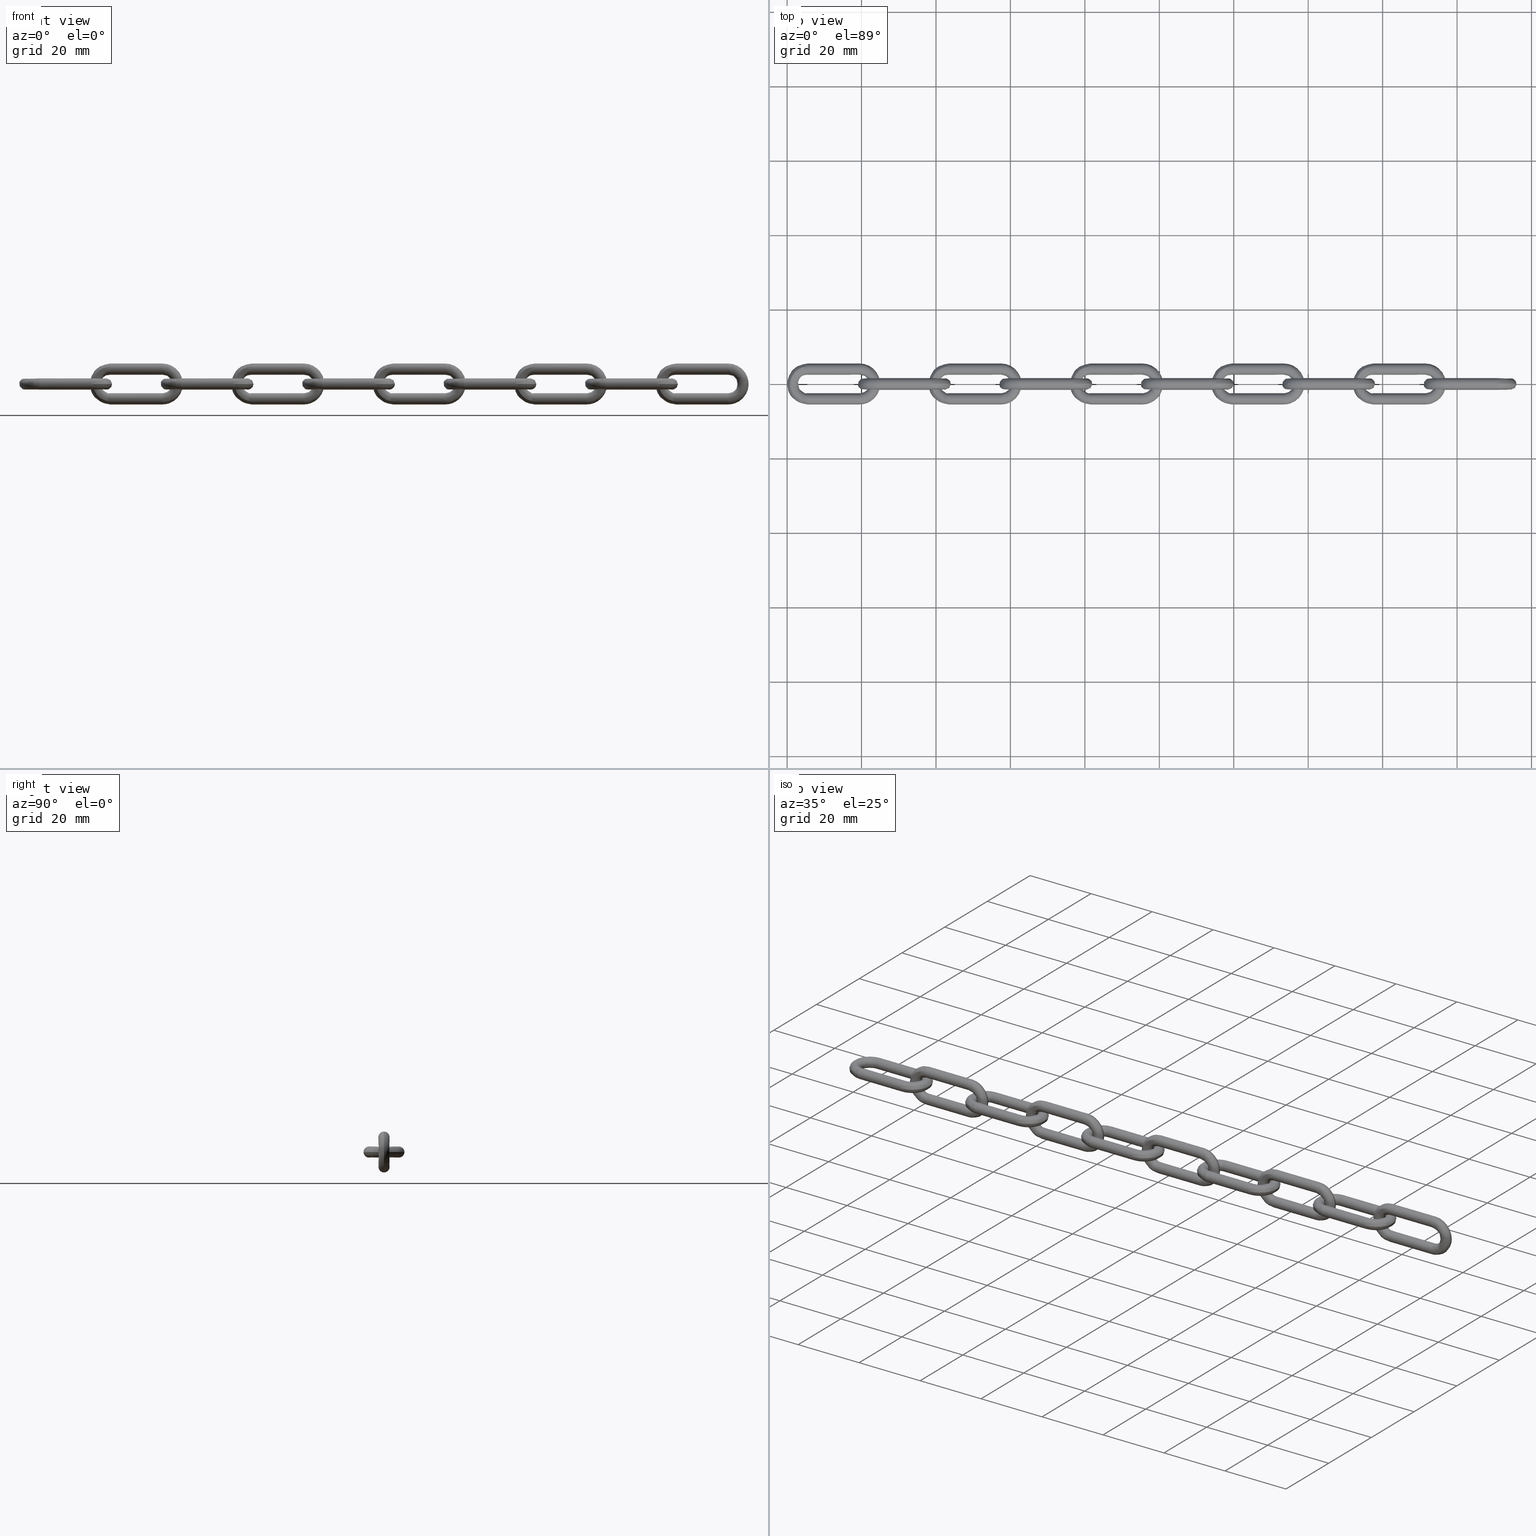
[diagram: canonical four-view strip — front | top / right | iso, engineering-drawing reading convention]
A machine part, canonical four-view strip (front | top / right | iso — engineering-drawing reading convention). The complete STEP part file that produces these views, byte-faithful:
ISO-10303-21;
HEADER;
/****************************************************************
 * Generated by software with PDE/Lib inside                    *
 * PDElib Version 4.4.1-0003, patched  Thursday August 19 11:58 *
 * International Technegroup Inc. (www.iti-oh.com)              *
 ****************************************************************/
FILE_DESCRIPTION((''),'2;1');
FILE_NAME('','2005-12-14T14:34:41',(''),(''),'','CADfix','');
FILE_SCHEMA(('AUTOMOTIVE_DESIGN'));
ENDSEC;
DATA;
#5=APPLICATION_CONTEXT('automotive design');
#6=APPLICATION_PROTOCOL_DEFINITION('Draft International Standard','automotive_design',1998,#5);
#7=PRODUCT_CONTEXT('None',#5,'mechanical');
#8=PRODUCT('chain','','None',(#7));
#9=PRODUCT_RELATED_PRODUCT_CATEGORY('part','description',(#8));
#10=PRODUCT_DEFINITION_FORMATION('None','None',#8);
#11=PRODUCT_DEFINITION_CONTEXT('part definition',#5,'design');
#12=PRODUCT_DEFINITION('None','None',#10,#11);
#18=(NAMED_UNIT(*)PLANE_ANGLE_UNIT()SI_UNIT($,.RADIAN.));
#19=DIMENSIONAL_EXPONENTS(0.0,0.0,0.0,0.0,0.0,0.0,0.0);
#20=PLANE_ANGLE_MEASURE_WITH_UNIT(PLANE_ANGLE_MEASURE(0.017453292500000),#18);
#24=(CONVERSION_BASED_UNIT('DEGREE',#20)NAMED_UNIT(#19)PLANE_ANGLE_UNIT());
#28=(NAMED_UNIT(*)SI_UNIT($,.STERADIAN.)SOLID_ANGLE_UNIT());
#32=(LENGTH_UNIT()NAMED_UNIT(*)SI_UNIT(.MILLI.,.METRE.));
#34=UNCERTAINTY_MEASURE_WITH_UNIT(LENGTH_MEASURE(0.001000000000000),#32,'DISTANCE_ACCURACY_VALUE','');
#36=(GEOMETRIC_REPRESENTATION_CONTEXT(3)GLOBAL_UNCERTAINTY_ASSIGNED_CONTEXT((#34))GLOBAL_UNIT_ASSIGNED_CONTEXT((#24,#28,#32))REPRESENTATION_CONTEXT('None','None'));
#37=AXIS2_PLACEMENT_3D('',#38,#39,#40);
#38=CARTESIAN_POINT('',(0.0,0.0,0.0));
#39=DIRECTION('',(0.0,0.0,1.0));
#40=DIRECTION('',(1.0,0.0,0.0));
#41=ADVANCED_BREP_SHAPE_REPRESENTATION('',(#37,#837,#877,#893,#909,#925,#941,#957,#973,#989,#1005,#1021),#36);
#42=PRODUCT_DEFINITION_SHAPE('','',#12);
#43=SHAPE_DEFINITION_REPRESENTATION(#42,#41);
#44=CARTESIAN_POINT('',(19.850000000045117,-2.532623368388962,0.311136338285710));
#45=CARTESIAN_POINT('',(19.850000000045117,-2.372475699922098,-0.444149745011559));
#46=CARTESIAN_POINT('',(19.850000000045121,-2.894083994784815,-1.013385311423490));
#47=CARTESIAN_POINT('',(19.850000000045114,-3.907469306208305,-2.119301316638675));
#48=CARTESIAN_POINT('',(19.850000000045121,-5.013385311423490,-1.105916005215185));
#49=CARTESIAN_POINT('',(19.850000000045114,-6.119301316638675,-0.092530693791695));
#50=CARTESIAN_POINT('',(19.850000000045121,-5.105916005215185,1.013385311423491));
#51=CARTESIAN_POINT('',(19.850000000045114,-4.092530693791695,2.119301316638677));
#52=CARTESIAN_POINT('',(19.850000000045121,-2.986614688576510,1.105916005215186));
#53=CARTESIAN_POINT('',(5.141249999998872,-2.532623368388962,0.311136338285710));
#54=CARTESIAN_POINT('',(5.141249999998872,-2.372475699922098,-0.444149745011559));
#55=CARTESIAN_POINT('',(5.141249999998871,-2.894083994784815,-1.013385311423490));
#56=CARTESIAN_POINT('',(5.141249999998871,-3.907469306208305,-2.119301316638675));
#57=CARTESIAN_POINT('',(5.141249999998871,-5.013385311423490,-1.105916005215185));
#58=CARTESIAN_POINT('',(5.141249999998871,-6.119301316638675,-0.092530693791695));
#59=CARTESIAN_POINT('',(5.141249999998871,-5.105916005215185,1.013385311423491));
#60=CARTESIAN_POINT('',(5.141249999998871,-4.092530693791695,2.119301316638677));
#61=CARTESIAN_POINT('',(5.141249999998871,-2.986614688576510,1.105916005215186));
#69=(BOUNDED_SURFACE()B_SPLINE_SURFACE(2,1,((#44,#53),(#45,#54),(#46,#55),(#47,#56),(#48,#57),(#49,#58),(#50,#59),(#51,#60),(#52,#61)),.UNSPECIFIED.,.F.,.F.,.U.)B_SPLINE_SURFACE_WITH_KNOTS((3,2,2,2,3),(2,2),(0.628318530717959,1.570796326794897,3.141592653589793,4.712388980384690,6.283185307179586),(0.0,14.708750000046249),.UNSPECIFIED.)GEOMETRIC_REPRESENTATION_ITEM()RATIONAL_B_SPLINE_SURFACE(((0.859411254969543,0.859411254969543),(0.824264068711928,0.824264068711928),(1.0,1.0),(0.707106781186548,0.707106781186548),(1.0,1.0),(0.707106781186548,0.707106781186548),(1.0,1.0),(0.707106781186548,0.707106781186548),(1.0,1.0)))REPRESENTATION_ITEM('')SURFACE());
#70=CARTESIAN_POINT('',(5.500000000000001,-2.532623368391872,0.311136338299437));
#71=VERTEX_POINT('',#70);
#72=CARTESIAN_POINT('',(5.500000000000000,-2.500000000000000,7.347638E-016));
#73=VERTEX_POINT('',#72);
#74=CARTESIAN_POINT('',(5.500000000000000,-2.532623368391871,0.311136338299437));
#75=CARTESIAN_POINT('',(5.500000000000000,-2.500000000000000,0.157278487165710));
#76=CARTESIAN_POINT('',(5.500000000000000,-2.500000000000000,7.347638E-016));
#84=(BOUNDED_CURVE()B_SPLINE_CURVE(2,(#74,#75,#76),.UNSPECIFIED.,.F.,.U.)B_SPLINE_CURVE_WITH_KNOTS((3,3),(0.464472125250221,0.500000000000000),.UNSPECIFIED.)CURVE()GEOMETRIC_REPRESENTATION_ITEM()RATIONAL_B_SPLINE_CURVE((0.928583365613134,0.958376505627744,1.0))REPRESENTATION_ITEM(''));
#85=EDGE_CURVE('',#71,#73,#84,.T.);
#86=ORIENTED_EDGE('',*,*,#85,.F.);
#87=CARTESIAN_POINT('',(19.500000000000000,-2.532623368391872,0.311136338299438));
#88=VERTEX_POINT('',#87);
#89=CARTESIAN_POINT('',(19.500000000000000,-2.532623368391872,0.311136338299438));
#90=CARTESIAN_POINT('',(5.500000000000001,-2.532623368391872,0.311136338299437));
#91=QUASI_UNIFORM_CURVE('',1,(#89,#90),.UNSPECIFIED.,.F.,.U.);
#92=EDGE_CURVE('',#88,#71,#91,.T.);
#93=ORIENTED_EDGE('',*,*,#92,.F.);
#94=CARTESIAN_POINT('',(19.500000000000000,-4.0,-1.499999999999999));
#95=VERTEX_POINT('',#94);
#96=CARTESIAN_POINT('',(19.499999999999996,-2.532623368391872,0.311136338299438));
#97=CARTESIAN_POINT('',(19.499999999999996,-2.500000000000000,0.157278487165710));
#98=CARTESIAN_POINT('',(19.500000000000000,-2.500000000000000,7.347638E-016));
#99=CARTESIAN_POINT('',(19.500000000000004,-2.500000000000000,-1.500000000000000));
#100=CARTESIAN_POINT('',(19.500000000000000,-4.0,-1.499999999999999));
#108=(BOUNDED_CURVE()B_SPLINE_CURVE(2,(#96,#97,#98,#99,#100),.UNSPECIFIED.,.F.,.U.)B_SPLINE_CURVE_WITH_KNOTS((3,2,3),(0.214472125250221,0.250000000000000,0.500000000000000),.UNSPECIFIED.)CURVE()GEOMETRIC_REPRESENTATION_ITEM()RATIONAL_B_SPLINE_CURVE((0.928583365613133,0.958376505627744,1.0,0.707106781186548,1.0))REPRESENTATION_ITEM(''));
#109=EDGE_CURVE('',#88,#95,#108,.T.);
#110=ORIENTED_EDGE('',*,*,#109,.T.);
#111=CARTESIAN_POINT('',(19.500000000044022,-4.529952950130690,-1.403264006040124));
#112=VERTEX_POINT('',#111);
#113=CARTESIAN_POINT('',(19.500000000000000,-4.0,-1.499999999999999));
#114=CARTESIAN_POINT('',(19.500000000000000,-4.273805421679723,-1.500000000000000));
#115=CARTESIAN_POINT('',(19.500000000044025,-4.529952950130690,-1.403264006040124));
#123=(BOUNDED_CURVE()B_SPLINE_CURVE(2,(#113,#114,#115),.UNSPECIFIED.,.F.,.U.)B_SPLINE_CURVE_WITH_KNOTS((3,3),(0.500000000000000,0.560000000031626),.UNSPECIFIED.)CURVE()GEOMETRIC_REPRESENTATION_ITEM()RATIONAL_B_SPLINE_CURVE((1.0,0.929705627447719,0.893152553738318))REPRESENTATION_ITEM(''));
#124=EDGE_CURVE('',#95,#112,#123,.T.);
#125=ORIENTED_EDGE('',*,*,#124,.T.);
#126=CARTESIAN_POINT('',(19.499994373816659,-5.499999999994236,-0.000000113220544));
#127=VERTEX_POINT('',#126);
#128=CARTESIAN_POINT('',(19.500000000044022,-4.529952950130690,-1.403264006040124));
#129=CARTESIAN_POINT('',(19.499997186930333,-5.499999921659858,-1.036918648166086));
#130=CARTESIAN_POINT('',(19.499994373816662,-5.499999999994236,-0.000000113220544));
#138=(BOUNDED_CURVE()B_SPLINE_CURVE(2,(#128,#129,#130),.UNSPECIFIED.,.F.,.U.)B_SPLINE_CURVE_WITH_KNOTS((3,3),(0.560000000031626,0.749999986656831),.UNSPECIFIED.)CURVE()GEOMETRIC_REPRESENTATION_ITEM()RATIONAL_B_SPLINE_CURVE((0.893152553738319,0.777401161867725,0.999999968735012))REPRESENTATION_ITEM(''));
#139=EDGE_CURVE('',#112,#127,#138,.T.);
#140=ORIENTED_EDGE('',*,*,#139,.T.);
#141=CARTESIAN_POINT('',(19.500000000000000,-4.0,1.500000000000001));
#142=VERTEX_POINT('',#141);
#143=CARTESIAN_POINT('',(19.499994373816651,-5.499999999994235,-0.000000113220544));
#144=CARTESIAN_POINT('',(19.499997186908324,-5.500000113217666,1.500000000000000));
#145=CARTESIAN_POINT('',(19.500000000000000,-4.0,1.500000000000001));
#153=(BOUNDED_CURVE()B_SPLINE_CURVE(2,(#143,#144,#145),.UNSPECIFIED.,.F.,.U.)B_SPLINE_CURVE_WITH_KNOTS((3,3),(0.749999986656831,1.0),.UNSPECIFIED.)CURVE()GEOMETRIC_REPRESENTATION_ITEM()RATIONAL_B_SPLINE_CURVE((1.000000031264992,0.707106765554053,1.0))REPRESENTATION_ITEM(''));
#154=EDGE_CURVE('',#127,#142,#153,.T.);
#155=ORIENTED_EDGE('',*,*,#154,.T.);
#156=CARTESIAN_POINT('',(19.500000000000000,-2.986614737113435,1.105916049691080));
#157=VERTEX_POINT('',#156);
#158=CARTESIAN_POINT('',(19.500000000000000,-4.0,1.500000000000001));
#159=CARTESIAN_POINT('',(19.500000000000004,-3.416681978008819,1.500000000000001));
#160=CARTESIAN_POINT('',(19.500000000000004,-2.986614737113435,1.105916049691080));
#168=(BOUNDED_CURVE()B_SPLINE_CURVE(2,(#158,#159,#160),.UNSPECIFIED.,.F.,.U.)B_SPLINE_CURVE_WITH_KNOTS((3,3),(0.0,0.118415195833259),.UNSPECIFIED.)CURVE()GEOMETRIC_REPRESENTATION_ITEM()RATIONAL_B_SPLINE_CURVE((1.0,0.861267968543886,0.853959782473544))REPRESENTATION_ITEM(''));
#169=EDGE_CURVE('',#142,#157,#168,.T.);
#170=ORIENTED_EDGE('',*,*,#169,.T.);
#171=CARTESIAN_POINT('',(5.500000000000001,-2.986614737719884,1.105916050246788));
#172=VERTEX_POINT('',#171);
#173=CARTESIAN_POINT('',(19.500000000000000,-2.986614737113435,1.105916049691080));
#174=CARTESIAN_POINT('',(5.500000000000001,-2.986614737719884,1.105916050246788));
#175=QUASI_UNIFORM_CURVE('',1,(#173,#174),.UNSPECIFIED.,.F.,.U.);
#176=EDGE_CURVE('',#157,#172,#175,.T.);
#177=ORIENTED_EDGE('',*,*,#176,.T.);
#178=CARTESIAN_POINT('',(5.500000000040920,-4.638668937461087,1.357240578645631));
#179=VERTEX_POINT('',#178);
#180=CARTESIAN_POINT('',(5.500000000040921,-4.638668937461086,1.357240578645631));
#181=CARTESIAN_POINT('',(5.500000000000001,-4.335289724477404,1.500000000000001));
#182=CARTESIAN_POINT('',(5.500000000000000,-4.0,1.500000000000001));
#183=CARTESIAN_POINT('',(5.500000000000002,-3.416681978955765,1.500000000000001));
#184=CARTESIAN_POINT('',(5.500000000000001,-2.986614737719884,1.105916050246788));
#192=(BOUNDED_CURVE()B_SPLINE_CURVE(2,(#180,#181,#182,#183,#184),.UNSPECIFIED.,.F.,.U.)B_SPLINE_CURVE_WITH_KNOTS((3,2,3),(0.177668464610475,0.250000000000000,0.368415195667695),.UNSPECIFIED.)CURVE()GEOMETRIC_REPRESENTATION_ITEM()RATIONAL_B_SPLINE_CURVE((0.879552628086753,0.915258335112172,1.0,0.861267968737856,0.853959782493981))REPRESENTATION_ITEM(''));
#193=EDGE_CURVE('',#179,#172,#192,.T.);
#194=ORIENTED_EDGE('',*,*,#193,.F.);
#195=CARTESIAN_POINT('',(5.500000000000000,-5.500000000000000,7.347638E-016));
#196=VERTEX_POINT('',#195);
#197=CARTESIAN_POINT('',(5.500000000000000,-5.500000000000000,7.347638E-016));
#198=CARTESIAN_POINT('',(5.500000000000000,-5.500000000000000,0.951928946140301));
#199=CARTESIAN_POINT('',(5.500000000040920,-4.638668937461087,1.357240578645631));
#207=(BOUNDED_CURVE()B_SPLINE_CURVE(2,(#197,#198,#199),.UNSPECIFIED.,.F.,.U.)B_SPLINE_CURVE_WITH_KNOTS((3,3),(0.0,0.177668464610475),.UNSPECIFIED.)CURVE()GEOMETRIC_REPRESENTATION_ITEM()RATIONAL_B_SPLINE_CURVE((1.0,0.791848446074376,0.879552628086753))REPRESENTATION_ITEM(''));
#208=EDGE_CURVE('',#196,#179,#207,.T.);
#209=ORIENTED_EDGE('',*,*,#208,.F.);
#210=CARTESIAN_POINT('',(5.500000000191934,-3.522315445648221,-1.421906279096389));
#211=VERTEX_POINT('',#210);
#212=CARTESIAN_POINT('',(5.500000000191934,-3.522315445648221,-1.421906279096389));
#213=CARTESIAN_POINT('',(5.500000000000000,-3.754774189241835,-1.499999999999999));
#214=CARTESIAN_POINT('',(5.500000000000000,-4.0,-1.499999999999999));
#215=CARTESIAN_POINT('',(5.500000000000001,-5.500000000000001,-1.500000000000000));
#216=CARTESIAN_POINT('',(5.500000000000000,-5.500000000000000,7.347638E-016));
#224=(BOUNDED_CURVE()B_SPLINE_CURVE(2,(#212,#213,#214,#215,#216),.UNSPECIFIED.,.F.,.U.)B_SPLINE_CURVE_WITH_KNOTS((3,2,3),(0.695865557042459,0.750000000000000,1.0),.UNSPECIFIED.)CURVE()GEOMETRIC_REPRESENTATION_ITEM()RATIONAL_B_SPLINE_CURVE((0.900621819870533,0.936577555013970,1.0,0.707106781186548,1.0))REPRESENTATION_ITEM(''));
#225=EDGE_CURVE('',#211,#196,#224,.T.);
#226=ORIENTED_EDGE('',*,*,#225,.F.);
#227=CARTESIAN_POINT('',(5.500000000000000,-2.500000000000000,7.347638E-016));
#228=CARTESIAN_POINT('',(5.500000000000000,-2.500000000000000,-1.078462897042010));
#229=CARTESIAN_POINT('',(5.500000000191935,-3.522315445648221,-1.421906279096390));
#237=(BOUNDED_CURVE()B_SPLINE_CURVE(2,(#227,#228,#229),.UNSPECIFIED.,.F.,.U.)B_SPLINE_CURVE_WITH_KNOTS((3,3),(0.500000000000000,0.695865557042458),.UNSPECIFIED.)CURVE()GEOMETRIC_REPRESENTATION_ITEM()RATIONAL_B_SPLINE_CURVE((1.0,0.770529226172578,0.900621819870532))REPRESENTATION_ITEM(''));
#238=EDGE_CURVE('',#73,#211,#237,.T.);
#239=ORIENTED_EDGE('',*,*,#238,.F.);
#240=EDGE_LOOP('',(#86,#93,#110,#125,#140,#155,#170,#177,#194,#209,#226,#239));
#241=FACE_OUTER_BOUND('',#240,.T.);
#242=ADVANCED_FACE('',(#241),#69,.T.);
#243=CARTESIAN_POINT('',(19.850000000045121,-2.986614688576510,1.105916005215186));
#244=CARTESIAN_POINT('',(19.850000000045117,-2.632304370029082,0.781250415054134));
#245=CARTESIAN_POINT('',(19.850000000045117,-2.532623368388962,0.311136338285710));
#246=CARTESIAN_POINT('',(5.141249999998871,-2.986614688576510,1.105916005215186));
#247=CARTESIAN_POINT('',(5.141249999998871,-2.632304370029082,0.781250415054134));
#248=CARTESIAN_POINT('',(5.141249999998872,-2.532623368388962,0.311136338285710));
#256=(BOUNDED_SURFACE()B_SPLINE_SURFACE(2,1,((#243,#246),(#244,#247),(#245,#248)),.UNSPECIFIED.,.F.,.F.,.U.)B_SPLINE_SURFACE_WITH_KNOTS((3,3),(2,2),(0.0,0.628318530717959),(0.0,14.708750000046249),.UNSPECIFIED.)GEOMETRIC_REPRESENTATION_ITEM()RATIONAL_B_SPLINE_SURFACE(((1.0,1.0),(0.882842712474619,0.882842712474619),(0.859411254969543,0.859411254969543)))REPRESENTATION_ITEM('')SURFACE());
#257=CARTESIAN_POINT('',(5.500000000000001,-2.986614737719884,1.105916050246788));
#258=CARTESIAN_POINT('',(5.500000000000000,-2.632304385285503,0.781250486962912));
#259=CARTESIAN_POINT('',(5.500000000000002,-2.532623368391872,0.311136338299437));
#267=(BOUNDED_CURVE()B_SPLINE_CURVE(2,(#257,#258,#259),.UNSPECIFIED.,.F.,.U.)B_SPLINE_CURVE_WITH_KNOTS((3,3),(0.368415195667695,0.464472125250222),.UNSPECIFIED.)CURVE()GEOMETRIC_REPRESENTATION_ITEM()RATIONAL_B_SPLINE_CURVE((0.853959782493981,0.848031472977236,0.928583365613134))REPRESENTATION_ITEM(''));
#268=EDGE_CURVE('',#172,#71,#267,.T.);
#269=ORIENTED_EDGE('',*,*,#268,.F.);
#270=ORIENTED_EDGE('',*,*,#176,.F.);
#271=CARTESIAN_POINT('',(19.500000000000004,-2.986614737113435,1.105916049691080));
#272=CARTESIAN_POINT('',(19.499999999999993,-2.632304385097375,0.781250486075659));
#273=CARTESIAN_POINT('',(19.499999999999996,-2.532623368391872,0.311136338299438));
#281=(BOUNDED_CURVE()B_SPLINE_CURVE(2,(#271,#272,#273),.UNSPECIFIED.,.F.,.U.)B_SPLINE_CURVE_WITH_KNOTS((3,3),(0.118415195833259,0.214472125250221),.UNSPECIFIED.)CURVE()GEOMETRIC_REPRESENTATION_ITEM()RATIONAL_B_SPLINE_CURVE((0.853959782473545,0.848031473116076,0.928583365613133))REPRESENTATION_ITEM(''));
#282=EDGE_CURVE('',#157,#88,#281,.T.);
#283=ORIENTED_EDGE('',*,*,#282,.T.);
#284=ORIENTED_EDGE('',*,*,#92,.T.);
#285=EDGE_LOOP('',(#269,#270,#283,#284));
#286=FACE_OUTER_BOUND('',#285,.T.);
#287=ADVANCED_FACE('',(#286),#256,.T.);
#288=CARTESIAN_POINT('',(19.850000000021467,3.669434129405280,-1.463122074605519));
#289=CARTESIAN_POINT('',(19.850000000021463,3.253083383079867,-1.369055182088071));
#290=CARTESIAN_POINT('',(19.850000000021460,2.948636103550223,-1.069875673731272));
#291=CARTESIAN_POINT('',(19.850000000021467,1.878760429818952,-0.018511777281495));
#292=CARTESIAN_POINT('',(19.850000000021460,2.930124326268729,1.051363896449776));
#293=CARTESIAN_POINT('',(5.141249999661905,3.669434129405280,-1.463122074605519));
#294=CARTESIAN_POINT('',(5.141249999661906,3.253083383079867,-1.369055182088071));
#295=CARTESIAN_POINT('',(5.141249999661905,2.948636103550223,-1.069875673731272));
#296=CARTESIAN_POINT('',(5.141249999661906,1.878760429818952,-0.018511777281495));
#297=CARTESIAN_POINT('',(5.141249999661905,2.930124326268729,1.051363896449776));
#305=(BOUNDED_SURFACE()B_SPLINE_SURFACE(2,1,((#288,#293),(#289,#294),(#290,#295),(#291,#296),(#292,#297)),.UNSPECIFIED.,.F.,.F.,.U.)B_SPLINE_SURFACE_WITH_KNOTS((3,2,3),(2,2),(4.146902302738527,4.712388980384690,6.283185307179586),(0.0,14.708750000359560),.UNSPECIFIED.)GEOMETRIC_REPRESENTATION_ITEM()RATIONAL_B_SPLINE_SURFACE(((0.865034804770761,0.865034804770761),(0.894558441227157,0.894558441227157),(1.0,1.0),(0.707106781186548,0.707106781186548),(1.0,1.0)))REPRESENTATION_ITEM('')SURFACE());
#306=CARTESIAN_POINT('',(19.500000000000000,3.669434129378090,-1.463122074599375));
#307=VERTEX_POINT('',#306);
#308=CARTESIAN_POINT('',(19.500000000000000,2.930124267276296,1.051363836418634));
#309=VERTEX_POINT('',#308);
#310=CARTESIAN_POINT('',(19.500000000000004,3.669434129378090,-1.463122074599375));
#311=CARTESIAN_POINT('',(19.499999999999996,2.500000000000000,-1.198909663442834));
#312=CARTESIAN_POINT('',(19.500000000000000,2.500000000000000,-7.347638E-016));
#313=CARTESIAN_POINT('',(19.499999999999996,2.500000000000000,0.613666103889056));
#314=CARTESIAN_POINT('',(19.500000000000007,2.930124267276297,1.051363836418634));
#322=(BOUNDED_CURVE()B_SPLINE_CURVE(2,(#310,#311,#312,#313,#314),.UNSPECIFIED.,.F.,.U.)B_SPLINE_CURVE_WITH_KNOTS((3,2,3),(0.537700295056450,0.750000000000000,0.873683225475780),.UNSPECIFIED.)CURVE()GEOMETRIC_REPRESENTATION_ITEM()RATIONAL_B_SPLINE_CURVE((0.924984080855624,0.751275424263750,1.0,0.855096087908676,0.853569641669462))REPRESENTATION_ITEM(''));
#323=EDGE_CURVE('',#307,#309,#322,.T.);
#324=ORIENTED_EDGE('',*,*,#323,.T.);
#325=CARTESIAN_POINT('',(5.500000000000001,2.930124313960822,1.051363883925160));
#326=VERTEX_POINT('',#325);
#327=CARTESIAN_POINT('',(19.500000000000000,2.930124267276296,1.051363836418634));
#328=CARTESIAN_POINT('',(5.500000000000001,2.930124313960822,1.051363883925160));
#329=QUASI_UNIFORM_CURVE('',1,(#327,#328),.UNSPECIFIED.,.F.,.U.);
#330=EDGE_CURVE('',#309,#326,#329,.T.);
#331=ORIENTED_EDGE('',*,*,#330,.T.);
#332=CARTESIAN_POINT('',(5.500000000000000,2.500000000000000,7.347638E-016));
#333=VERTEX_POINT('',#332);
#334=CARTESIAN_POINT('',(5.500000000000001,2.930124313960822,1.051363883925160));
#335=CARTESIAN_POINT('',(5.500000000000000,2.500000000000000,0.613666181642619));
#336=CARTESIAN_POINT('',(5.500000000000000,2.500000000000000,7.347638E-016));
#344=(BOUNDED_CURVE()B_SPLINE_CURVE(2,(#334,#335,#336),.UNSPECIFIED.,.F.,.U.)B_SPLINE_CURVE_WITH_KNOTS((3,3),(0.376316761123940,0.500000000000000),.UNSPECIFIED.)CURVE()GEOMETRIC_REPRESENTATION_ITEM()RATIONAL_B_SPLINE_CURVE((0.853569641338702,0.855096072209271,1.0))REPRESENTATION_ITEM(''));
#345=EDGE_CURVE('',#326,#333,#344,.T.);
#346=ORIENTED_EDGE('',*,*,#345,.T.);
#347=CARTESIAN_POINT('',(5.499999999670675,3.522315445656581,-1.421906279099199));
#348=VERTEX_POINT('',#347);
#349=CARTESIAN_POINT('',(5.500000000000000,2.500000000000000,7.347638E-016));
#350=CARTESIAN_POINT('',(5.500000000000000,2.500000000000000,-1.078462897055402));
#351=CARTESIAN_POINT('',(5.499999999670675,3.522315445656581,-1.421906279099198));
#359=(BOUNDED_CURVE()B_SPLINE_CURVE(2,(#349,#350,#351),.UNSPECIFIED.,.F.,.U.)B_SPLINE_CURVE_WITH_KNOTS((3,3),(0.500000000000000,0.695865557044332),.UNSPECIFIED.)CURVE()GEOMETRIC_REPRESENTATION_ITEM()RATIONAL_B_SPLINE_CURVE((1.0,0.770529226170382,0.900621819873021))REPRESENTATION_ITEM(''));
#360=EDGE_CURVE('',#333,#348,#359,.T.);
#361=ORIENTED_EDGE('',*,*,#360,.T.);
#362=CARTESIAN_POINT('',(5.499999999844485,3.669434129386455,-1.463122074678581));
#363=VERTEX_POINT('',#362);
#364=CARTESIAN_POINT('',(5.499999999670675,3.522315445656581,-1.421906279099199));
#365=CARTESIAN_POINT('',(5.499999999773398,3.594823911432018,-1.446265250509173));
#366=CARTESIAN_POINT('',(5.499999999844485,3.669434129386454,-1.463122074678580));
#374=(BOUNDED_CURVE()B_SPLINE_CURVE(2,(#364,#365,#366),.UNSPECIFIED.,.F.,.U.)B_SPLINE_CURVE_WITH_KNOTS((3,3),(0.695865557044332,0.712299704788338),.UNSPECIFIED.)CURVE()GEOMETRIC_REPRESENTATION_ITEM()RATIONAL_B_SPLINE_CURVE((0.900621819873020,0.911537270948608,0.924984080601628))REPRESENTATION_ITEM(''));
#375=EDGE_CURVE('',#348,#363,#374,.T.);
#376=ORIENTED_EDGE('',*,*,#375,.T.);
#377=CARTESIAN_POINT('',(19.500000000000000,3.669434129378090,-1.463122074599375));
#378=CARTESIAN_POINT('',(5.499999999844485,3.669434129386455,-1.463122074678581));
#379=QUASI_UNIFORM_CURVE('',1,(#377,#378),.UNSPECIFIED.,.F.,.U.);
#380=EDGE_CURVE('',#307,#363,#379,.T.);
#381=ORIENTED_EDGE('',*,*,#380,.F.);
#382=EDGE_LOOP('',(#324,#331,#346,#361,#376,#381));
#383=FACE_OUTER_BOUND('',#382,.T.);
#384=ADVANCED_FACE('',(#383),#305,.T.);
#385=CARTESIAN_POINT('',(19.850000000021460,2.930124326268729,1.051363896449776));
#386=CARTESIAN_POINT('',(19.850000000021467,3.981488222718505,2.121239570181047));
#387=CARTESIAN_POINT('',(19.850000000021460,5.051363896449777,1.069875673731271));
#388=CARTESIAN_POINT('',(19.850000000021467,6.121239570181048,0.018511777281494));
#389=CARTESIAN_POINT('',(19.850000000021460,5.069875673731271,-1.051363896449777));
#390=CARTESIAN_POINT('',(19.850000000021463,4.484319144189457,-1.647230549914629));
#391=CARTESIAN_POINT('',(19.850000000021467,3.669434129405280,-1.463122074605519));
#392=CARTESIAN_POINT('',(5.141249999661905,2.930124326268729,1.051363896449776));
#393=CARTESIAN_POINT('',(5.141249999661906,3.981488222718505,2.121239570181047));
#394=CARTESIAN_POINT('',(5.141249999661905,5.051363896449777,1.069875673731271));
#395=CARTESIAN_POINT('',(5.141249999661906,6.121239570181048,0.018511777281494));
#396=CARTESIAN_POINT('',(5.141249999661905,5.069875673731271,-1.051363896449777));
#397=CARTESIAN_POINT('',(5.141249999661905,4.484319144189457,-1.647230549914629));
#398=CARTESIAN_POINT('',(5.141249999661905,3.669434129405280,-1.463122074605519));
#406=(BOUNDED_SURFACE()B_SPLINE_SURFACE(2,1,((#385,#392),(#386,#393),(#387,#394),(#388,#395),(#389,#396),(#390,#397),(#391,#398)),.UNSPECIFIED.,.F.,.F.,.U.)B_SPLINE_SURFACE_WITH_KNOTS((3,2,2,3),(2,2),(0.0,1.570796326794897,3.141592653589793,4.146902302738527),(0.0,14.708750000359560),.UNSPECIFIED.)GEOMETRIC_REPRESENTATION_ITEM()RATIONAL_B_SPLINE_SURFACE(((1.0,1.0),(0.707106781186548,0.707106781186548),(1.0,1.0),(0.707106781186548,0.707106781186548),(1.0,1.0),(0.812548339959390,0.812548339959390),(0.865034804770761,0.865034804770761)))REPRESENTATION_ITEM('')SURFACE());
#407=CARTESIAN_POINT('',(19.500000000000000,4.0,-1.500000000000001));
#408=VERTEX_POINT('',#407);
#409=CARTESIAN_POINT('',(19.500000000000000,4.0,-1.500000000000001));
#410=CARTESIAN_POINT('',(19.500000000000000,3.832660014170450,-1.500000000000001));
#411=CARTESIAN_POINT('',(19.499999999999996,3.669434129378089,-1.463122074599375));
#419=(BOUNDED_CURVE()B_SPLINE_CURVE(2,(#409,#410,#411),.UNSPECIFIED.,.F.,.U.)B_SPLINE_CURVE_WITH_KNOTS((3,3),(0.500000000000000,0.537700295056451),.UNSPECIFIED.)CURVE()GEOMETRIC_REPRESENTATION_ITEM()RATIONAL_B_SPLINE_CURVE((1.0,0.955831356922797,0.924984080855623))REPRESENTATION_ITEM(''));
#420=EDGE_CURVE('',#408,#307,#419,.T.);
#421=ORIENTED_EDGE('',*,*,#420,.T.);
#422=ORIENTED_EDGE('',*,*,#380,.T.);
#423=CARTESIAN_POINT('',(5.500000000000000,5.500000000000000,7.347638E-016));
#424=VERTEX_POINT('',#423);
#425=CARTESIAN_POINT('',(5.499999999844485,3.669434129386455,-1.463122074678581));
#426=CARTESIAN_POINT('',(5.500000000000000,3.832660013449677,-1.499999999999999));
#427=CARTESIAN_POINT('',(5.500000000000000,4.0,-1.499999999999999));
#428=CARTESIAN_POINT('',(5.500000000000001,5.500000000000001,-1.500000000000000));
#429=CARTESIAN_POINT('',(5.500000000000000,5.500000000000000,7.347638E-016));
#437=(BOUNDED_CURVE()B_SPLINE_CURVE(2,(#425,#426,#427,#428,#429),.UNSPECIFIED.,.F.,.U.)B_SPLINE_CURVE_WITH_KNOTS((3,2,3),(0.712299704788337,0.750000000000000,1.0),.UNSPECIFIED.)CURVE()GEOMETRIC_REPRESENTATION_ITEM()RATIONAL_B_SPLINE_CURVE((0.924984080601626,0.955831356740955,1.0,0.707106781186548,1.0))REPRESENTATION_ITEM(''));
#438=EDGE_CURVE('',#363,#424,#437,.T.);
#439=ORIENTED_EDGE('',*,*,#438,.T.);
#440=CARTESIAN_POINT('',(5.499999999974881,4.638668937400975,1.357240578673917));
#441=VERTEX_POINT('',#440);
#442=CARTESIAN_POINT('',(5.500000000000000,5.500000000000000,7.347638E-016));
#443=CARTESIAN_POINT('',(5.500000000000000,5.500000000000000,0.951928946233487));
#444=CARTESIAN_POINT('',(5.499999999974881,4.638668937400975,1.357240578673916));
#452=(BOUNDED_CURVE()B_SPLINE_CURVE(2,(#442,#443,#444),.UNSPECIFIED.,.F.,.U.)B_SPLINE_CURVE_WITH_KNOTS((3,3),(0.0,0.177668464624247),.UNSPECIFIED.)CURVE()GEOMETRIC_REPRESENTATION_ITEM()RATIONAL_B_SPLINE_CURVE((1.0,0.791848446058241,0.879552628100350))REPRESENTATION_ITEM(''));
#453=EDGE_CURVE('',#424,#441,#452,.T.);
#454=ORIENTED_EDGE('',*,*,#453,.T.);
#455=CARTESIAN_POINT('',(5.499999999974881,4.638668937400975,1.357240578673916));
#456=CARTESIAN_POINT('',(5.499999999999999,4.335289724407652,1.500000000000001));
#457=CARTESIAN_POINT('',(5.500000000000000,4.0,1.500000000000001));
#458=CARTESIAN_POINT('',(5.500000000000000,3.370997776714741,1.500000000000001));
#459=CARTESIAN_POINT('',(5.500000000000001,2.930124313960822,1.051363883925160));
#467=(BOUNDED_CURVE()B_SPLINE_CURVE(2,(#455,#456,#457,#458,#459),.UNSPECIFIED.,.F.,.U.)B_SPLINE_CURVE_WITH_KNOTS((3,2,3),(0.177668464624247,0.250000000000000,0.376316761123940),.UNSPECIFIED.)CURVE()GEOMETRIC_REPRESENTATION_ITEM()RATIONAL_B_SPLINE_CURVE((0.879552628100350,0.915258335128307,1.0,0.852010708977277,0.853569641338702))REPRESENTATION_ITEM(''));
#468=EDGE_CURVE('',#441,#326,#467,.T.);
#469=ORIENTED_EDGE('',*,*,#468,.T.);
#470=ORIENTED_EDGE('',*,*,#330,.F.);
#471=CARTESIAN_POINT('',(19.500000000000000,4.0,1.499999999999999));
#472=VERTEX_POINT('',#471);
#473=CARTESIAN_POINT('',(19.500000000000007,2.930124267276297,1.051363836418634));
#474=CARTESIAN_POINT('',(19.500000000000007,3.370997698397021,1.500000000000000));
#475=CARTESIAN_POINT('',(19.500000000000000,4.0,1.499999999999999));
#483=(BOUNDED_CURVE()B_SPLINE_CURVE(2,(#473,#474,#475),.UNSPECIFIED.,.F.,.U.)B_SPLINE_CURVE_WITH_KNOTS((3,3),(0.873683225475779,1.0),.UNSPECIFIED.)CURVE()GEOMETRIC_REPRESENTATION_ITEM()RATIONAL_B_SPLINE_CURVE((0.853569641669462,0.852010693277871,1.0))REPRESENTATION_ITEM(''));
#484=EDGE_CURVE('',#309,#472,#483,.T.);
#485=ORIENTED_EDGE('',*,*,#484,.T.);
#486=CARTESIAN_POINT('',(19.499994116558391,5.499999999993696,0.000000116087101));
#487=VERTEX_POINT('',#486);
#488=CARTESIAN_POINT('',(19.500000000000000,4.0,1.499999999999999));
#489=CARTESIAN_POINT('',(19.499997058279195,5.499999883909750,1.499999999999998));
#490=CARTESIAN_POINT('',(19.499994116558394,5.499999999993696,0.000000116087101));
#498=(BOUNDED_CURVE()B_SPLINE_CURVE(2,(#488,#489,#490),.UNSPECIFIED.,.F.,.U.)B_SPLINE_CURVE_WITH_KNOTS((3,3),(0.0,0.249999986319004),.UNSPECIFIED.)CURVE()GEOMETRIC_REPRESENTATION_ITEM()RATIONAL_B_SPLINE_CURVE((1.0,0.707106797214832,0.999999967943434))REPRESENTATION_ITEM(''));
#499=EDGE_CURVE('',#472,#487,#498,.T.);
#500=ORIENTED_EDGE('',*,*,#499,.T.);
#501=CARTESIAN_POINT('',(19.500000000012900,4.529952950038338,-1.403264006075001));
#502=VERTEX_POINT('',#501);
#503=CARTESIAN_POINT('',(19.499994116558394,5.499999999993694,0.000000116087101));
#504=CARTESIAN_POINT('',(19.499997058285647,5.500000080221340,-1.036918588429967));
#505=CARTESIAN_POINT('',(19.500000000012907,4.529952950038338,-1.403264006075002));
#513=(BOUNDED_CURVE()B_SPLINE_CURVE(2,(#503,#504,#505),.UNSPECIFIED.,.F.,.U.)B_SPLINE_CURVE_WITH_KNOTS((3,3),(0.249999986319004,0.439999999989156),.UNSPECIFIED.)CURVE()GEOMETRIC_REPRESENTATION_ITEM()RATIONAL_B_SPLINE_CURVE((1.000000032056570,0.777401145379773,0.893152553763640))REPRESENTATION_ITEM(''));
#514=EDGE_CURVE('',#487,#502,#513,.T.);
#515=ORIENTED_EDGE('',*,*,#514,.T.);
#516=CARTESIAN_POINT('',(19.500000000012903,4.529952950038338,-1.403264006075001));
#517=CARTESIAN_POINT('',(19.499999999999996,4.273805421577716,-1.500000000000001));
#518=CARTESIAN_POINT('',(19.500000000000000,4.0,-1.500000000000001));
#526=(BOUNDED_CURVE()B_SPLINE_CURVE(2,(#516,#517,#518),.UNSPECIFIED.,.F.,.U.)B_SPLINE_CURVE_WITH_KNOTS((3,3),(0.439999999989156,0.500000000000000),.UNSPECIFIED.)CURVE()GEOMETRIC_REPRESENTATION_ITEM()RATIONAL_B_SPLINE_CURVE((0.893152553763640,0.929705627472067,1.0))REPRESENTATION_ITEM(''));
#527=EDGE_CURVE('',#502,#408,#526,.T.);
#528=ORIENTED_EDGE('',*,*,#527,.T.);
#529=EDGE_LOOP('',(#421,#422,#439,#454,#469,#470,#485,#500,#515,#528));
#530=FACE_OUTER_BOUND('',#529,.T.);
#531=ADVANCED_FACE('',(#530),#406,.T.);
#532=CARTESIAN_POINT('',(18.859386836117121,4.484427332824605,-1.403264006093199));
#533=CARTESIAN_POINT('',(24.062889801873443,5.227762490419299,-1.403264006093199));
#534=CARTESIAN_POINT('',(24.029863532597179,-0.028462346541998,-1.403264006093199));
#535=CARTESIAN_POINT('',(23.997230586938024,-5.222088609384808,-1.403264006093200));
#536=CARTESIAN_POINT('',(18.856218538145232,-4.483973590298745,-1.403264006093199));
#537=CARTESIAN_POINT('',(18.895610496813532,4.230854063837478,-1.499999999999999));
#538=CARTESIAN_POINT('',(23.804879849382967,4.932157115240003,-1.499999999999999));
#539=CARTESIAN_POINT('',(23.773721060264435,-0.026852934744226,-1.499999999999999));
#540=CARTESIAN_POINT('',(23.742933354162826,-4.926804065485623,-1.499999999999999));
#541=CARTESIAN_POINT('',(18.892621351186921,-4.230425978316855,-1.499999999999998));
#542=CARTESIAN_POINT('',(18.934331286920514,3.959800362018643,-1.499999999999998));
#543=CARTESIAN_POINT('',(23.529083614992821,4.616173764392553,-1.499999999999999));
#544=CARTESIAN_POINT('',(23.499921043424550,-0.025132575862238,-1.499999999999999));
#545=CARTESIAN_POINT('',(23.471105781085701,-4.611163662877478,-1.499999999999999));
#546=CARTESIAN_POINT('',(18.931533643760108,-3.959399702205290,-1.499999999999999));
#547=CARTESIAN_POINT('',(19.146457054325328,2.474875226261652,-1.500000000000000));
#548=CARTESIAN_POINT('',(22.018177259370514,2.885108602745345,-1.499999999999999));
#549=CARTESIAN_POINT('',(21.999950652140349,-0.015707859913899,-1.500000000000000));
#550=CARTESIAN_POINT('',(21.981941113178561,-2.881977289298425,-1.499999999999999));
#551=CARTESIAN_POINT('',(19.144708527350073,-2.474624813878308,-1.499999999999999));
#552=CARTESIAN_POINT('',(19.146457054325317,2.474875226261651,5.510729E-016));
#553=CARTESIAN_POINT('',(22.018177259370521,2.885108602745346,5.510729E-016));
#554=CARTESIAN_POINT('',(21.999950652140338,-0.015707859913899,5.510729E-016));
#555=CARTESIAN_POINT('',(21.981941113178557,-2.881977289298425,5.510729E-016));
#556=CARTESIAN_POINT('',(19.144708527350065,-2.474624813878307,5.510729E-016));
#557=CARTESIAN_POINT('',(19.146457054325328,2.474875226261652,1.500000000000001));
#558=CARTESIAN_POINT('',(22.018177259370514,2.885108602745345,1.500000000000000));
#559=CARTESIAN_POINT('',(21.999950652140349,-0.015707859913899,1.500000000000000));
#560=CARTESIAN_POINT('',(21.981941113178561,-2.881977289298425,1.500000000000000));
#561=CARTESIAN_POINT('',(19.144708527350073,-2.474624813878308,1.500000000000000));
#562=CARTESIAN_POINT('',(18.934331286920514,3.959800362018643,1.500000000000000));
#563=CARTESIAN_POINT('',(23.529083614992821,4.616173764392553,1.500000000000000));
#564=CARTESIAN_POINT('',(23.499921043424550,-0.025132575862238,1.500000000000000));
#565=CARTESIAN_POINT('',(23.471105781085701,-4.611163662877478,1.500000000000000));
#566=CARTESIAN_POINT('',(18.931533643760108,-3.959399702205290,1.500000000000000));
#567=CARTESIAN_POINT('',(18.722205519515715,5.444725497775635,1.500000000000001));
#568=CARTESIAN_POINT('',(25.039989970615149,6.347238926039764,1.500000000000001));
#569=CARTESIAN_POINT('',(24.999891434708758,-0.034557291810576,1.500000000000001));
#570=CARTESIAN_POINT('',(24.960270448992830,-6.340350036456531,1.500000000000000));
#571=CARTESIAN_POINT('',(18.718358760170148,-5.444174590532277,1.500000000000000));
#572=CARTESIAN_POINT('',(18.722205519515711,5.444725497775634,1.102146E-015));
#573=CARTESIAN_POINT('',(25.039989970615139,6.347238926039765,1.102146E-015));
#574=CARTESIAN_POINT('',(24.999891434708751,-0.034557291810576,1.102146E-015));
#575=CARTESIAN_POINT('',(24.960270448992826,-6.340350036456534,1.102146E-015));
#576=CARTESIAN_POINT('',(18.718358760170151,-5.444174590532273,1.102146E-015));
#584=(BOUNDED_SURFACE()B_SPLINE_SURFACE(2,2,((#532,#537,#542,#547,#552,#557,#562,#567,#572),(#533,#538,#543,#548,#553,#558,#563,#568,#573),(#534,#539,#544,#549,#554,#559,#564,#569,#574),(#535,#540,#545,#550,#555,#560,#565,#570,#575),(#536,#541,#546,#551,#556,#561,#566,#571,#576)),.UNSPECIFIED.,.F.,.F.,.U.)B_SPLINE_SURFACE_WITH_KNOTS((3,2,3),(3,2,2,2,3),(0.0,10.082756960156679,20.087158122171068),(0.0,0.596467529817258,3.081748904055830,5.567030278294402,8.052311652532973),.UNSPECIFIED.)GEOMETRIC_REPRESENTATION_ITEM()RATIONAL_B_SPLINE_SURFACE(((0.884916528628720,0.921132535580208,0.990778702794607,0.700586339401278,0.990778702794607,0.700586339401278,0.990778702794607,0.700586339401278,0.990778702794607),(0.580379332246047,0.604131879804056,0.649809855877152,0.459484955572587,0.649809855877152,0.459484955572587,0.649809855877152,0.459484955572587,0.649809855877152),(0.893152553776853,0.929705627484771,1.0,0.707106781186548,1.0,0.707106781186548,1.0,0.707106781186548,1.0),(0.582809976514021,0.606662000380651,0.652531277047249,0.461409290936427,0.652531277047249,0.461409290936427,0.652531277047249,0.461409290936427,0.652531277047249),(0.880220529773536,0.916244348737025,0.985520923666812,0.696868528126033,0.985520923666812,0.696868528126033,0.985520923666812,0.696868528126033,0.985520923666812)))REPRESENTATION_ITEM('')SURFACE());
#585=ORIENTED_EDGE('',*,*,#124,.F.);
#586=ORIENTED_EDGE('',*,*,#109,.F.);
#587=ORIENTED_EDGE('',*,*,#282,.F.);
#588=ORIENTED_EDGE('',*,*,#169,.F.);
#589=ORIENTED_EDGE('',*,*,#154,.F.);
#590=CARTESIAN_POINT('',(19.499994116558394,5.499999999993696,0.000000116087101));
#591=CARTESIAN_POINT('',(25.034666578589931,5.500005920528174,6.850217E-016));
#592=CARTESIAN_POINT('',(24.999891434708751,-0.034557291810576,6.661338E-016));
#593=CARTESIAN_POINT('',(24.965550558349467,-5.500005590946414,6.847858E-016));
#594=CARTESIAN_POINT('',(19.499994373816669,-5.499999999994236,-0.000000113220544));
#602=(BOUNDED_CURVE()B_SPLINE_CURVE(2,(#590,#591,#592,#593,#594),.UNSPECIFIED.,.F.,.U.)B_SPLINE_CURVE_WITH_KNOTS((3,2,3),(-3.795103198114675,-2.0,-0.220234844091748),.UNSPECIFIED.)CURVE()GEOMETRIC_REPRESENTATION_ITEM()RATIONAL_B_SPLINE_CURVE((0.934738886967110,0.681492768884628,1.0,0.684214215405936,0.930452966963536))REPRESENTATION_ITEM(''));
#603=EDGE_CURVE('',#487,#127,#602,.T.);
#604=ORIENTED_EDGE('',*,*,#603,.F.);
#605=ORIENTED_EDGE('',*,*,#499,.F.);
#606=ORIENTED_EDGE('',*,*,#484,.F.);
#607=ORIENTED_EDGE('',*,*,#323,.F.);
#608=ORIENTED_EDGE('',*,*,#420,.F.);
#609=ORIENTED_EDGE('',*,*,#527,.F.);
#610=CARTESIAN_POINT('',(19.500000000012900,4.529952950038338,-1.403264006075001));
#611=CARTESIAN_POINT('',(24.058505277523455,4.529952949964176,-1.403264006093199));
#612=CARTESIAN_POINT('',(24.029863532597179,-0.028462346541998,-1.403264006093200));
#613=CARTESIAN_POINT('',(24.001579460773296,-4.529952949902655,-1.403264006093199));
#614=CARTESIAN_POINT('',(19.500000000044011,-4.529952950130690,-1.403264006040124));
#622=(BOUNDED_CURVE()B_SPLINE_CURVE(2,(#610,#611,#612,#613,#614),.UNSPECIFIED.,.F.,.U.)B_SPLINE_CURVE_WITH_KNOTS((3,2,3),(-3.795101889444412,-2.0,-0.220236089818309),.UNSPECIFIED.)CURVE()GEOMETRIC_REPRESENTATION_ITEM()RATIONAL_B_SPLINE_CURVE((0.834864094218136,0.608677214298781,0.893152553776853,0.611107871234372,0.831036135739651))REPRESENTATION_ITEM(''));
#623=EDGE_CURVE('',#502,#112,#622,.T.);
#624=ORIENTED_EDGE('',*,*,#623,.T.);
#625=EDGE_LOOP('',(#585,#586,#587,#588,#589,#604,#605,#606,#607,#608,#609,#624));
#626=FACE_OUTER_BOUND('',#625,.T.);
#627=ADVANCED_FACE('',(#626),#584,.T.);
#628=CARTESIAN_POINT('',(18.722205519515715,5.444725497775634,0.008045426282001));
#629=CARTESIAN_POINT('',(25.039989970615135,6.347238926039765,0.008045426282001));
#630=CARTESIAN_POINT('',(24.999891434708736,-0.034557291810576,0.008045426282001));
#631=CARTESIAN_POINT('',(24.960270448992834,-6.340350036456534,0.008045426282001));
#632=CARTESIAN_POINT('',(18.718358760170148,-5.444174590532273,0.008045426282001));
#633=CARTESIAN_POINT('',(18.722205519515715,5.444725497775635,0.004027186707367));
#634=CARTESIAN_POINT('',(25.039989970615139,6.347238926039764,0.004027186707367));
#635=CARTESIAN_POINT('',(24.999891434708754,-0.034557291810576,0.004027186707367));
#636=CARTESIAN_POINT('',(24.960270448992841,-6.340350036456534,0.004027186707367));
#637=CARTESIAN_POINT('',(18.718358760170148,-5.444174590532273,0.004027186707367));
#638=CARTESIAN_POINT('',(18.722205519515711,5.444725497775633,-1.036918602066139));
#639=CARTESIAN_POINT('',(25.039989970615132,6.347238926039763,-1.036918602066139));
#640=CARTESIAN_POINT('',(24.999891434708754,-0.034557291810576,-1.036918602066139));
#641=CARTESIAN_POINT('',(24.960270448992834,-6.340350036456534,-1.036918602066139));
#642=CARTESIAN_POINT('',(18.718358760170158,-5.444174590532274,-1.036918602066139));
#643=CARTESIAN_POINT('',(18.860016267871075,4.480021177720859,-1.404944915971612));
#644=CARTESIAN_POINT('',(24.058406553802676,5.222625974501264,-1.404944915971613));
#645=CARTESIAN_POINT('',(24.025412734347572,-0.028434380983818,-1.404944915971612));
#646=CARTESIAN_POINT('',(23.992811852051116,-5.216957668314578,-1.404944915971613));
#647=CARTESIAN_POINT('',(18.856851082896959,-4.479567881017798,-1.404944915971612));
#648=CARTESIAN_POINT('',(18.860644843171045,4.475621017975737,-1.406623538672815));
#649=CARTESIAN_POINT('',(24.053929405989251,5.217496447727794,-1.406623538672816));
#650=CARTESIAN_POINT('',(24.020967992201530,-0.028406453477760,-1.406623538672815));
#651=CARTESIAN_POINT('',(23.988399129639866,-5.211833708803341,-1.406623538672816));
#652=CARTESIAN_POINT('',(18.857482766958910,-4.475168166488853,-1.406623538672816));
#660=(BOUNDED_SURFACE()B_SPLINE_SURFACE(2,2,((#628,#633,#638,#643,#648),(#629,#634,#639,#644,#649),(#630,#635,#640,#645,#650),(#631,#636,#641,#646,#651),(#632,#637,#642,#647,#652)),.UNSPECIFIED.,.F.,.F.,.U.)B_SPLINE_SURFACE_WITH_KNOTS((3,2,3),(3,1,1,3),(0.0,10.082756960156679,20.087158122171068),(0.0,0.009354345735706,1.879684445206989,1.889550676367506),.UNSPECIFIED.)GEOMETRIC_REPRESENTATION_ITEM()RATIONAL_B_SPLINE_SURFACE(((0.992984800364707,0.991881751579657,0.770232509383167,0.885521498646073,0.886126471541615),(0.651256741988081,0.650533298932616,0.505162933460762,0.580776106499144,0.581172882639924),(1.002226629986977,1.001113314993488,0.777401156495024,0.893763154323318,0.894373757774761),(0.653984222756162,0.653257749901705,0.507278569425706,0.583208412468372,0.583606850318311),(0.987715314108241,0.986618118887527,0.766145105808623,0.880822289388080,0.881424051865540)))REPRESENTATION_ITEM('')SURFACE());
#661=ORIENTED_EDGE('',*,*,#139,.F.);
#662=ORIENTED_EDGE('',*,*,#623,.F.);
#663=ORIENTED_EDGE('',*,*,#514,.F.);
#664=ORIENTED_EDGE('',*,*,#603,.T.);
#665=EDGE_LOOP('',(#661,#662,#663,#664));
#666=FACE_OUTER_BOUND('',#665,.T.);
#667=ADVANCED_FACE('',(#666),#660,.T.);
#668=CARTESIAN_POINT('',(5.868918921435268,3.481966170476366,-1.414898403499186));
#669=CARTESIAN_POINT('',(2.629196924124638,3.825219001343026,-1.414898403499186));
#670=CARTESIAN_POINT('',(2.053623595528817,0.618610751312241,-1.414898403499186));
#671=CARTESIAN_POINT('',(1.478050266932995,-2.587997498718546,-1.414898403499186));
#672=CARTESIAN_POINT('',(4.634907113374909,-3.392904932420818,-1.414898403499186));
#673=CARTESIAN_POINT('',(5.335643569924002,-3.571572515519578,-1.414898403499186));
#674=CARTESIAN_POINT('',(6.049827548610945,-3.458016664176637,-1.414898403499186));
#675=CARTESIAN_POINT('',(5.870015040800132,3.492311670057707,-1.418393391150244));
#676=CARTESIAN_POINT('',(2.620667291564905,3.836584362072972,-1.418393391150244));
#677=CARTESIAN_POINT('',(2.043383839051021,0.620448746558426,-1.418393391150244));
#678=CARTESIAN_POINT('',(1.466100386537136,-2.595686868956120,-1.418393391150244));
#679=CARTESIAN_POINT('',(4.632336778782836,-3.402985816277619,-1.418393391150244));
#680=CARTESIAN_POINT('',(5.335155239683186,-3.582184250428817,-1.418393391150244));
#681=CARTESIAN_POINT('',(6.051461177542265,-3.468291005798576,-1.418393391150244));
#682=CARTESIAN_POINT('',(6.004525181500065,4.761858262249400,-1.847280331531093));
#683=CARTESIAN_POINT('',(1.573954577141152,5.231283078194491,-1.847280331531094));
#684=CARTESIAN_POINT('',(0.786813497614400,0.845998086434453,-1.847280331531093));
#685=CARTESIAN_POINT('',(-0.000327581912353,-3.539286905325587,-1.847280331531094));
#686=CARTESIAN_POINT('',(4.316918514396341,-4.640060125358552,-1.847280331531093));
#687=CARTESIAN_POINT('',(5.275229859742110,-4.884401875140277,-1.847280331531094));
#688=CARTESIAN_POINT('',(6.251931732526617,-4.729105458555572,-1.847280331531094));
#689=CARTESIAN_POINT('',(6.064447413262786,5.327422053462671,-0.638668937347609));
#690=CARTESIAN_POINT('',(1.107659905703647,5.852600246340506,-0.638668937347609));
#691=CARTESIAN_POINT('',(0.227030429706528,0.946476903478668,-0.638668937347609));
#692=CARTESIAN_POINT('',(-0.653599046290591,-3.959646439383171,-0.638668937347609));
#693=CARTESIAN_POINT('',(4.176404451721117,-5.191158005940085,-0.638668937347609));
#694=CARTESIAN_POINT('',(5.248534009997152,-5.464520116838765,-0.638668937347609));
#695=CARTESIAN_POINT('',(6.341238330489158,-5.290779213818634,-0.638668937347609));
#696=CARTESIAN_POINT('',(6.131738591308909,5.962536144701316,0.718571641351420));
#697=CARTESIAN_POINT('',(0.584022570533833,6.550323995188530,0.718571641351420));
#698=CARTESIAN_POINT('',(-0.401592052829701,1.059312119536031,0.718571641351420));
#699=CARTESIAN_POINT('',(-1.387206676193236,-4.431699756116470,0.718571641351420));
#700=CARTESIAN_POINT('',(4.018610649132064,-5.810027238813405,0.718571641351420));
#701=CARTESIAN_POINT('',(5.218555233749403,-6.115978494499223,0.718571641351420));
#702=CARTESIAN_POINT('',(6.441527421990079,-5.921524891297795,0.718571641351420));
#703=CARTESIAN_POINT('',(5.987719864939699,4.603244701525316,1.361785787111842));
#704=CARTESIAN_POINT('',(1.704727903390886,5.057033365059159,1.361785787111842));
#705=CARTESIAN_POINT('',(0.943805842268297,0.817818589804130,1.361785787111842));
#706=CARTESIAN_POINT('',(0.182883781145708,-3.421396185450898,1.361785787111842));
#707=CARTESIAN_POINT('',(4.356325980289641,-4.485503559848914,1.361785787111842));
#708=CARTESIAN_POINT('',(5.282716767232278,-4.721706488012686,1.361785787111842));
#709=CARTESIAN_POINT('',(6.226885508353380,-4.571582866636412,1.361785787111842));
#710=CARTESIAN_POINT('',(5.986708153358562,4.593695867634973,1.366304277288926));
#711=CARTESIAN_POINT('',(1.712600702941855,5.046543205462631,1.366304277288927));
#712=CARTESIAN_POINT('',(0.953257075910061,0.816122131246564,1.366304277288926));
#713=CARTESIAN_POINT('',(0.193913448878267,-3.414298942969503,1.366304277288927));
#714=CARTESIAN_POINT('',(4.358698383658789,-4.476198964680781,1.366304277288926));
#715=CARTESIAN_POINT('',(5.283167493107478,-4.711911920515970,1.366304277288926));
#716=CARTESIAN_POINT('',(6.225377678675270,-4.562099711114616,1.366304277288926));
#724=(BOUNDED_SURFACE()B_SPLINE_SURFACE(2,2,((#668,#675,#682,#689,#696,#703,#710),(#669,#676,#683,#690,#697,#704,#711),(#670,#677,#684,#691,#698,#705,#712),(#671,#678,#685,#692,#699,#706,#713),(#672,#679,#686,#693,#700,#707,#714),(#673,#680,#687,#694,#701,#708,#715),(#674,#681,#688,#695,#702,#709,#716)),.UNSPECIFIED.,.F.,.F.,.U.)B_SPLINE_SURFACE_WITH_KNOTS((3,2,2,3),(3,1,2,1,3),(0.0,8.512342623227458,17.024685246454919,19.411699871428361),(0.0,0.024796508971991,2.311255266614770,4.796536640853340,4.821623753926160),.UNSPECIFIED.)GEOMETRIC_REPRESENTATION_ITEM()RATIONAL_B_SPLINE_SURFACE(((0.961795554872342,0.959340825973027,0.730538251261237,1.0,0.707106781186548,1.002956544629031,1.005913089258062),(0.704144995629487,0.702347851671684,0.534838044463402,0.732115044681140,0.517683512702726,0.734279575484325,0.736444106287509),(0.961795554872342,0.959340825973027,0.730538251261237,1.0,0.707106781186548,1.002956544629031,1.005913089258062),(0.704144995629487,0.702347851671684,0.534838044463402,0.732115044681140,0.517683512702726,0.734279575484325,0.736444106287509),(0.961795554872342,0.959340825973027,0.730538251261237,1.0,0.707106781186548,1.002956544629031,1.005913089258062),(0.889545684270670,0.887275354066523,0.675660378457799,0.924880219880761,0.653989075262991,0.927614669527346,0.930349119173931),(0.857816151115951,0.855626802157353,0.651559999175780,0.891890326140889,0.630661697688905,0.894527239694326,0.897164153247762)))REPRESENTATION_ITEM('')SURFACE());
#725=ORIENTED_EDGE('',*,*,#225,.T.);
#726=ORIENTED_EDGE('',*,*,#208,.T.);
#727=CARTESIAN_POINT('',(5.499999999974881,4.638668937400975,1.357240578673917));
#728=CARTESIAN_POINT('',(1.619819737718135,4.638668937305583,1.357240578699029));
#729=CARTESIAN_POINT('',(0.934298722638411,0.819525079672570,1.357240578699029));
#730=CARTESIAN_POINT('',(0.171788894003361,-3.428535394560572,1.357240578699029));
#731=CARTESIAN_POINT('',(4.353939548687615,-4.494863173918785,1.357240578699029));
#732=CARTESIAN_POINT('',(4.917947520116582,-4.638668937357880,1.357240578699030));
#733=CARTESIAN_POINT('',(5.500000000040920,-4.638668937461087,1.357240578645631));
#741=(BOUNDED_CURVE()B_SPLINE_CURVE(2,(#727,#728,#729,#730,#731,#732,#733),.UNSPECIFIED.,.F.,.U.)B_SPLINE_CURVE_WITH_KNOTS((3,2,2,3),(-5.848050259197172,-4.0,-2.0,-1.648910857635327),.UNSPECIFIED.)CURVE()GEOMETRIC_REPRESENTATION_ITEM()RATIONAL_B_SPLINE_CURVE((0.962387511336719,0.752467569443979,1.0,0.732115044681140,1.0,0.952974250392351,0.922458730883508))REPRESENTATION_ITEM(''));
#742=EDGE_CURVE('',#441,#179,#741,.T.);
#743=ORIENTED_EDGE('',*,*,#742,.F.);
#744=ORIENTED_EDGE('',*,*,#453,.F.);
#745=ORIENTED_EDGE('',*,*,#438,.F.);
#746=ORIENTED_EDGE('',*,*,#375,.F.);
#747=CARTESIAN_POINT('',(5.499999999670675,3.522315445656581,-1.421906279099198));
#748=CARTESIAN_POINT('',(2.553633474096670,3.522315448082082,-1.421906280099128));
#749=CARTESIAN_POINT('',(2.033091634625277,0.622296156001054,-1.421906280099127));
#750=CARTESIAN_POINT('',(1.454089298952771,-2.603415624084424,-1.421906280099127));
#751=CARTESIAN_POINT('',(4.629753278958253,-3.413118334338121,-1.421906280099127));
#752=CARTESIAN_POINT('',(5.058025703328940,-3.522315448681202,-1.421906280099127));
#753=CARTESIAN_POINT('',(5.500000000191934,-3.522315445648221,-1.421906279096389));
#761=(BOUNDED_CURVE()B_SPLINE_CURVE(2,(#747,#748,#749,#750,#751,#752,#753),.UNSPECIFIED.,.F.,.U.)B_SPLINE_CURVE_WITH_KNOTS((3,2,2,3),(-5.848050258948285,-4.0,-2.0,-1.648910857511637),.UNSPECIFIED.)CURVE()GEOMETRIC_REPRESENTATION_ITEM()RATIONAL_B_SPLINE_CURVE((0.920895249864058,0.720025771621509,0.956886118190660,0.700550723173917,0.956886118190660,0.911887831177738,0.882687954165628))REPRESENTATION_ITEM(''));
#762=EDGE_CURVE('',#348,#211,#761,.T.);
#763=ORIENTED_EDGE('',*,*,#762,.T.);
#764=EDGE_LOOP('',(#725,#726,#743,#744,#745,#746,#763));
#765=FACE_OUTER_BOUND('',#764,.T.);
#766=ADVANCED_FACE('',(#765),#724,.T.);
#767=CARTESIAN_POINT('',(5.988737558861716,4.612849998522763,1.357240578699029));
#768=CARTESIAN_POINT('',(1.696808551273461,5.067585553905710,1.357240578699029));
#769=CARTESIAN_POINT('',(0.934298722638411,0.819525079672570,1.357240578699029));
#770=CARTESIAN_POINT('',(0.171788894003361,-3.428535394560572,1.357240578699029));
#771=CARTESIAN_POINT('',(4.353939548687615,-4.494863173918785,1.357240578699029));
#772=CARTESIAN_POINT('',(5.282263376174746,-4.731558971661251,1.357240578699029));
#773=CARTESIAN_POINT('',(6.228402253962964,-4.581122096903255,1.357240578699030));
#774=CARTESIAN_POINT('',(5.845736526414525,3.263163852344211,1.995909516046638));
#775=CARTESIAN_POINT('',(2.809594532013090,3.584847112622890,1.995909516046639));
#776=CARTESIAN_POINT('',(2.270189498106523,0.579738039809109,1.995909516046638));
#777=CARTESIAN_POINT('',(1.730784464199956,-2.425371033004674,1.995909516046639));
#778=CARTESIAN_POINT('',(4.689268448243166,-3.179699109024166,1.995909516046638));
#779=CARTESIAN_POINT('',(5.345971518600091,-3.347139448823281,1.995909516046639));
#780=CARTESIAN_POINT('',(6.015277085935849,-3.240719302508717,1.995909516046639));
#781=CARTESIAN_POINT('',(5.778445348368402,2.628049761105567,0.638668937347610));
#782=CARTESIAN_POINT('',(3.333231867182902,2.887123363774866,0.638668937347610));
#783=CARTESIAN_POINT('',(2.898811980642752,0.466902823751746,0.638668937347610));
#784=CARTESIAN_POINT('',(2.464392094102603,-1.953317716271375,0.638668937347610));
#785=CARTESIAN_POINT('',(4.847062250832220,-2.560829876150847,0.638668937347610));
#786=CARTESIAN_POINT('',(5.375950294847841,-2.695681071162821,0.638668937347610));
#787=CARTESIAN_POINT('',(5.914987994434930,-2.609973625029557,0.638668937347610));
#788=CARTESIAN_POINT('',(5.711154170322280,1.992935669866923,-0.718571641351419));
#789=CARTESIAN_POINT('',(3.856869202352717,2.189399614926842,-0.718571641351419));
#790=CARTESIAN_POINT('',(3.527434463178981,0.354067607694383,-0.718571641351419));
#791=CARTESIAN_POINT('',(3.197999724005248,-1.481264399538076,-0.718571641351419));
#792=CARTESIAN_POINT('',(5.004856053421273,-1.941960643277527,-0.718571641351419));
#793=CARTESIAN_POINT('',(5.405929071095589,-2.044222693502363,-0.718571641351419));
#794=CARTESIAN_POINT('',(5.814698902934008,-1.979227947550396,-0.718571641351419));
#795=CARTESIAN_POINT('',(5.854155202769471,3.342621816045474,-1.357240578699028));
#796=CARTESIAN_POINT('',(2.744083221613089,3.672138056209660,-1.357240578699028));
#797=CARTESIAN_POINT('',(2.191543687710870,0.593854647557844,-1.357240578699028));
#798=CARTESIAN_POINT('',(1.639004153808652,-2.484428761093974,-1.357240578699028));
#799=CARTESIAN_POINT('',(4.669527153865722,-3.257124708172146,-1.357240578699028));
#800=CARTESIAN_POINT('',(5.342220928670247,-3.428642216340334,-1.357240578699029));
#801=CARTESIAN_POINT('',(6.027824070961124,-3.319630741944935,-1.357240578699028));
#802=CARTESIAN_POINT('',(5.862438656135828,3.420803505084785,-1.394236006413949));
#803=CARTESIAN_POINT('',(2.679624171070251,3.758026909756262,-1.394236006413949));
#804=CARTESIAN_POINT('',(2.114161106957674,0.607744510648860,-1.394236006413949));
#805=CARTESIAN_POINT('',(1.548698042845096,-2.542537888458543,-1.394236006413949));
#806=CARTESIAN_POINT('',(4.650102949338487,-3.333306677030901,-1.394236006413949));
#807=CARTESIAN_POINT('',(5.338530581699972,-3.508835865020011,-1.394236006413949));
#808=CARTESIAN_POINT('',(6.040169523020718,-3.397274685135349,-1.394236006413949));
#809=CARTESIAN_POINT('',(5.871116774479313,3.502710159202298,-1.421906280099128));
#810=CARTESIAN_POINT('',(2.612093970297783,3.848007936086531,-1.421906280099128));
#811=CARTESIAN_POINT('',(2.033091634625277,0.622296156001054,-1.421906280099128));
#812=CARTESIAN_POINT('',(1.454089298952771,-2.603415624084424,-1.421906280099128));
#813=CARTESIAN_POINT('',(4.629753278958254,-3.413118334338121,-1.421906280099128));
#814=CARTESIAN_POINT('',(5.334664408218917,-3.592850338556454,-1.421906280099128));
#815=CARTESIAN_POINT('',(6.053103173907451,-3.478617972513286,-1.421906280099128));
#823=(BOUNDED_SURFACE()B_SPLINE_SURFACE(2,2,((#767,#774,#781,#788,#795,#802,#809),(#768,#775,#782,#789,#796,#803,#810),(#769,#776,#783,#790,#797,#804,#811),(#770,#777,#784,#791,#798,#805,#812),(#771,#778,#785,#792,#799,#806,#813),(#772,#779,#786,#793,#800,#807,#814),(#773,#780,#787,#794,#801,#808,#815)),.UNSPECIFIED.,.F.,.F.,.U.)B_SPLINE_SURFACE_WITH_KNOTS((3,2,2,3),(3,2,2,3),(0.0,7.296912933246826,14.593825866493651,16.640012052807439),(0.0,2.485281374238570,4.970562748477140,5.169385258416225),.UNSPECIFIED.)GEOMETRIC_REPRESENTATION_ITEM()RATIONAL_B_SPLINE_SURFACE(((1.0,0.707106781186548,1.0,0.707106781186548,1.0,0.976568542494924,0.956886118190660),(0.732115044681140,0.517683512702726,0.732115044681140,0.517683512702726,0.732115044681140,0.714960522122867,0.700550723173917),(1.0,0.707106781186548,1.0,0.707106781186548,1.0,0.976568542494924,0.956886118190660),(0.732115044681140,0.517683512702726,0.732115044681140,0.517683512702726,0.732115044681140,0.714960522122867,0.700550723173917),(1.0,0.707106781186548,1.0,0.707106781186548,1.0,0.976568542494924,0.956886118190660),(0.924880219880761,0.653989075262991,0.924880219880761,0.653989075262991,0.924880219880761,0.903208928311339,0.885005043393025),(0.891890326140889,0.630661697688905,0.891890326140889,0.630661697688905,0.891890326140889,0.870992035864731,0.853437472032757)))REPRESENTATION_ITEM('')SURFACE());
#824=ORIENTED_EDGE('',*,*,#238,.T.);
#825=ORIENTED_EDGE('',*,*,#762,.F.);
#826=ORIENTED_EDGE('',*,*,#360,.F.);
#827=ORIENTED_EDGE('',*,*,#345,.F.);
#828=ORIENTED_EDGE('',*,*,#468,.F.);
#829=ORIENTED_EDGE('',*,*,#742,.T.);
#830=ORIENTED_EDGE('',*,*,#193,.T.);
#831=ORIENTED_EDGE('',*,*,#268,.T.);
#832=ORIENTED_EDGE('',*,*,#85,.T.);
#833=EDGE_LOOP('',(#824,#825,#826,#827,#828,#829,#830,#831,#832));
#834=FACE_OUTER_BOUND('',#833,.T.);
#835=ADVANCED_FACE('',(#834),#823,.T.);
#836=CLOSED_SHELL('',(#242,#287,#384,#531,#627,#667,#766,#835));
#837=MANIFOLD_SOLID_BREP('chain',#836);
#838=APPLICATION_CONTEXT('automotive design');
#839=APPLICATION_PROTOCOL_DEFINITION('Draft International Standard','automotive_design',1998,#838);
#840=PRODUCT_CONTEXT('None',#838,'mechanical');
#841=PRODUCT('TM_103SUS_11_11384_36','','None',(#840));
#842=PRODUCT_RELATED_PRODUCT_CATEGORY('part','description',(#841));
#843=PRODUCT_DEFINITION_FORMATION('None','None',#841);
#844=PRODUCT_DEFINITION_CONTEXT('part definition',#838,'design');
#845=PRODUCT_DEFINITION('None','None',#843,#844);
#851=(NAMED_UNIT(*)PLANE_ANGLE_UNIT()SI_UNIT($,.RADIAN.));
#852=DIMENSIONAL_EXPONENTS(0.0,0.0,0.0,0.0,0.0,0.0,0.0);
#853=PLANE_ANGLE_MEASURE_WITH_UNIT(PLANE_ANGLE_MEASURE(0.017453292500000),#851);
#857=(CONVERSION_BASED_UNIT('DEGREE',#853)NAMED_UNIT(#852)PLANE_ANGLE_UNIT());
#861=(NAMED_UNIT(*)SI_UNIT($,.STERADIAN.)SOLID_ANGLE_UNIT());
#865=(LENGTH_UNIT()NAMED_UNIT(*)SI_UNIT(.MILLI.,.METRE.));
#867=UNCERTAINTY_MEASURE_WITH_UNIT(LENGTH_MEASURE(0.001000000000000),#865,'DISTANCE_ACCURACY_VALUE','');
#869=(GEOMETRIC_REPRESENTATION_CONTEXT(3)GLOBAL_UNCERTAINTY_ASSIGNED_CONTEXT((#867))GLOBAL_UNIT_ASSIGNED_CONTEXT((#857,#861,#865))REPRESENTATION_CONTEXT('None','None'));
#870=AXIS2_PLACEMENT_3D('',#871,#872,#873);
#871=CARTESIAN_POINT('',(0.0,0.0,0.0));
#872=DIRECTION('',(0.0,0.0,1.0));
#873=DIRECTION('',(1.0,0.0,0.0));
#874=SHAPE_REPRESENTATION('',(#870,#881,#897,#913,#929,#945,#961,#977,#993,#1009,#1025),#869);
#875=PRODUCT_DEFINITION_SHAPE('','',#845);
#876=SHAPE_DEFINITION_REPRESENTATION(#875,#874);
#877=AXIS2_PLACEMENT_3D('',#878,#879,#880);
#878=CARTESIAN_POINT('',(0.0,0.0,0.0));
#879=DIRECTION('',(0.0,0.0,1.0));
#880=DIRECTION('',(1.0,0.0,0.0));
#881=AXIS2_PLACEMENT_3D('',#882,#883,#884);
#882=CARTESIAN_POINT('',(171.0,0.0,0.0));
#883=DIRECTION('',(0.0,-1.0,0.0));
#884=DIRECTION('',(1.0,0.0,0.0));
#885=NEXT_ASSEMBLY_USAGE_OCCURRENCE('TM_103SUS_11_11384_36','TM_103SUS_11_11384_36','TM_103SUS_11_11384_36',#845,#12,'TM_103SUS_11_11384_36');
#886=PRODUCT_DEFINITION_SHAPE('TM_103SUS_11_11384_36','TM_103SUS_11_11384_36',#885);
#887=ITEM_DEFINED_TRANSFORMATION('TM_103SUS_11_11384_36','TM_103SUS_11_11384_36',#877,#881);
#891=(REPRESENTATION_RELATIONSHIP('TM_103SUS_11_11384_36','TM_103SUS_11_11384_36',#41,#874)REPRESENTATION_RELATIONSHIP_WITH_TRANSFORMATION(#887)SHAPE_REPRESENTATION_RELATIONSHIP());
#892=CONTEXT_DEPENDENT_SHAPE_REPRESENTATION(#891,#886);
#893=AXIS2_PLACEMENT_3D('',#894,#895,#896);
#894=CARTESIAN_POINT('',(0.0,0.0,0.0));
#895=DIRECTION('',(0.0,0.0,1.0));
#896=DIRECTION('',(1.0,0.0,0.0));
#897=AXIS2_PLACEMENT_3D('',#898,#899,#900);
#898=CARTESIAN_POINT('',(152.0,0.0,0.0));
#899=DIRECTION('',(0.0,0.0,1.0));
#900=DIRECTION('',(1.0,0.0,0.0));
#901=NEXT_ASSEMBLY_USAGE_OCCURRENCE('TM_103SUS_11_11384_36','TM_103SUS_11_11384_36','TM_103SUS_11_11384_36',#845,#12,'TM_103SUS_11_11384_36');
#902=PRODUCT_DEFINITION_SHAPE('TM_103SUS_11_11384_36','TM_103SUS_11_11384_36',#901);
#903=ITEM_DEFINED_TRANSFORMATION('TM_103SUS_11_11384_36','TM_103SUS_11_11384_36',#893,#897);
#907=(REPRESENTATION_RELATIONSHIP('TM_103SUS_11_11384_36','TM_103SUS_11_11384_36',#41,#874)REPRESENTATION_RELATIONSHIP_WITH_TRANSFORMATION(#903)SHAPE_REPRESENTATION_RELATIONSHIP());
#908=CONTEXT_DEPENDENT_SHAPE_REPRESENTATION(#907,#902);
#909=AXIS2_PLACEMENT_3D('',#910,#911,#912);
#910=CARTESIAN_POINT('',(0.0,0.0,0.0));
#911=DIRECTION('',(0.0,0.0,1.0));
#912=DIRECTION('',(1.0,0.0,0.0));
#913=AXIS2_PLACEMENT_3D('',#914,#915,#916);
#914=CARTESIAN_POINT('',(133.0,0.0,0.0));
#915=DIRECTION('',(0.0,-1.0,0.0));
#916=DIRECTION('',(1.0,0.0,0.0));
#917=NEXT_ASSEMBLY_USAGE_OCCURRENCE('TM_103SUS_11_11384_36','TM_103SUS_11_11384_36','TM_103SUS_11_11384_36',#845,#12,'TM_103SUS_11_11384_36');
#918=PRODUCT_DEFINITION_SHAPE('TM_103SUS_11_11384_36','TM_103SUS_11_11384_36',#917);
#919=ITEM_DEFINED_TRANSFORMATION('TM_103SUS_11_11384_36','TM_103SUS_11_11384_36',#909,#913);
#923=(REPRESENTATION_RELATIONSHIP('TM_103SUS_11_11384_36','TM_103SUS_11_11384_36',#41,#874)REPRESENTATION_RELATIONSHIP_WITH_TRANSFORMATION(#919)SHAPE_REPRESENTATION_RELATIONSHIP());
#924=CONTEXT_DEPENDENT_SHAPE_REPRESENTATION(#923,#918);
#925=AXIS2_PLACEMENT_3D('',#926,#927,#928);
#926=CARTESIAN_POINT('',(0.0,0.0,0.0));
#927=DIRECTION('',(0.0,0.0,1.0));
#928=DIRECTION('',(1.0,0.0,0.0));
#929=AXIS2_PLACEMENT_3D('',#930,#931,#932);
#930=CARTESIAN_POINT('',(114.0,0.0,0.0));
#931=DIRECTION('',(0.0,0.0,1.0));
#932=DIRECTION('',(1.0,0.0,0.0));
#933=NEXT_ASSEMBLY_USAGE_OCCURRENCE('TM_103SUS_11_11384_36','TM_103SUS_11_11384_36','TM_103SUS_11_11384_36',#845,#12,'TM_103SUS_11_11384_36');
#934=PRODUCT_DEFINITION_SHAPE('TM_103SUS_11_11384_36','TM_103SUS_11_11384_36',#933);
#935=ITEM_DEFINED_TRANSFORMATION('TM_103SUS_11_11384_36','TM_103SUS_11_11384_36',#925,#929);
#939=(REPRESENTATION_RELATIONSHIP('TM_103SUS_11_11384_36','TM_103SUS_11_11384_36',#41,#874)REPRESENTATION_RELATIONSHIP_WITH_TRANSFORMATION(#935)SHAPE_REPRESENTATION_RELATIONSHIP());
#940=CONTEXT_DEPENDENT_SHAPE_REPRESENTATION(#939,#934);
#941=AXIS2_PLACEMENT_3D('',#942,#943,#944);
#942=CARTESIAN_POINT('',(0.0,0.0,0.0));
#943=DIRECTION('',(0.0,0.0,1.0));
#944=DIRECTION('',(1.0,0.0,0.0));
#945=AXIS2_PLACEMENT_3D('',#946,#947,#948);
#946=CARTESIAN_POINT('',(95.0,0.0,0.0));
#947=DIRECTION('',(0.0,-1.0,0.0));
#948=DIRECTION('',(1.0,0.0,0.0));
#949=NEXT_ASSEMBLY_USAGE_OCCURRENCE('TM_103SUS_11_11384_36','TM_103SUS_11_11384_36','TM_103SUS_11_11384_36',#845,#12,'TM_103SUS_11_11384_36');
#950=PRODUCT_DEFINITION_SHAPE('TM_103SUS_11_11384_36','TM_103SUS_11_11384_36',#949);
#951=ITEM_DEFINED_TRANSFORMATION('TM_103SUS_11_11384_36','TM_103SUS_11_11384_36',#941,#945);
#955=(REPRESENTATION_RELATIONSHIP('TM_103SUS_11_11384_36','TM_103SUS_11_11384_36',#41,#874)REPRESENTATION_RELATIONSHIP_WITH_TRANSFORMATION(#951)SHAPE_REPRESENTATION_RELATIONSHIP());
#956=CONTEXT_DEPENDENT_SHAPE_REPRESENTATION(#955,#950);
#957=AXIS2_PLACEMENT_3D('',#958,#959,#960);
#958=CARTESIAN_POINT('',(0.0,0.0,0.0));
#959=DIRECTION('',(0.0,0.0,1.0));
#960=DIRECTION('',(1.0,0.0,0.0));
#961=AXIS2_PLACEMENT_3D('',#962,#963,#964);
#962=CARTESIAN_POINT('',(76.0,0.0,0.0));
#963=DIRECTION('',(0.0,0.0,1.0));
#964=DIRECTION('',(1.0,0.0,0.0));
#965=NEXT_ASSEMBLY_USAGE_OCCURRENCE('TM_103SUS_11_11384_36','TM_103SUS_11_11384_36','TM_103SUS_11_11384_36',#845,#12,'TM_103SUS_11_11384_36');
#966=PRODUCT_DEFINITION_SHAPE('TM_103SUS_11_11384_36','TM_103SUS_11_11384_36',#965);
#967=ITEM_DEFINED_TRANSFORMATION('TM_103SUS_11_11384_36','TM_103SUS_11_11384_36',#957,#961);
#971=(REPRESENTATION_RELATIONSHIP('TM_103SUS_11_11384_36','TM_103SUS_11_11384_36',#41,#874)REPRESENTATION_RELATIONSHIP_WITH_TRANSFORMATION(#967)SHAPE_REPRESENTATION_RELATIONSHIP());
#972=CONTEXT_DEPENDENT_SHAPE_REPRESENTATION(#971,#966);
#973=AXIS2_PLACEMENT_3D('',#974,#975,#976);
#974=CARTESIAN_POINT('',(0.0,0.0,0.0));
#975=DIRECTION('',(0.0,0.0,1.0));
#976=DIRECTION('',(1.0,0.0,0.0));
#977=AXIS2_PLACEMENT_3D('',#978,#979,#980);
#978=CARTESIAN_POINT('',(57.0,0.0,0.0));
#979=DIRECTION('',(0.0,-1.0,0.0));
#980=DIRECTION('',(1.0,0.0,0.0));
#981=NEXT_ASSEMBLY_USAGE_OCCURRENCE('TM_103SUS_11_11384_36','TM_103SUS_11_11384_36','TM_103SUS_11_11384_36',#845,#12,'TM_103SUS_11_11384_36');
#982=PRODUCT_DEFINITION_SHAPE('TM_103SUS_11_11384_36','TM_103SUS_11_11384_36',#981);
#983=ITEM_DEFINED_TRANSFORMATION('TM_103SUS_11_11384_36','TM_103SUS_11_11384_36',#973,#977);
#987=(REPRESENTATION_RELATIONSHIP('TM_103SUS_11_11384_36','TM_103SUS_11_11384_36',#41,#874)REPRESENTATION_RELATIONSHIP_WITH_TRANSFORMATION(#983)SHAPE_REPRESENTATION_RELATIONSHIP());
#988=CONTEXT_DEPENDENT_SHAPE_REPRESENTATION(#987,#982);
#989=AXIS2_PLACEMENT_3D('',#990,#991,#992);
#990=CARTESIAN_POINT('',(0.0,0.0,0.0));
#991=DIRECTION('',(0.0,0.0,1.0));
#992=DIRECTION('',(1.0,0.0,0.0));
#993=AXIS2_PLACEMENT_3D('',#994,#995,#996);
#994=CARTESIAN_POINT('',(38.0,0.0,0.0));
#995=DIRECTION('',(0.0,0.0,1.0));
#996=DIRECTION('',(1.0,0.0,0.0));
#997=NEXT_ASSEMBLY_USAGE_OCCURRENCE('TM_103SUS_11_11384_36','TM_103SUS_11_11384_36','TM_103SUS_11_11384_36',#845,#12,'TM_103SUS_11_11384_36');
#998=PRODUCT_DEFINITION_SHAPE('TM_103SUS_11_11384_36','TM_103SUS_11_11384_36',#997);
#999=ITEM_DEFINED_TRANSFORMATION('TM_103SUS_11_11384_36','TM_103SUS_11_11384_36',#989,#993);
#1003=(REPRESENTATION_RELATIONSHIP('TM_103SUS_11_11384_36','TM_103SUS_11_11384_36',#41,#874)REPRESENTATION_RELATIONSHIP_WITH_TRANSFORMATION(#999)SHAPE_REPRESENTATION_RELATIONSHIP());
#1004=CONTEXT_DEPENDENT_SHAPE_REPRESENTATION(#1003,#998);
#1005=AXIS2_PLACEMENT_3D('',#1006,#1007,#1008);
#1006=CARTESIAN_POINT('',(0.0,0.0,0.0));
#1007=DIRECTION('',(0.0,0.0,1.0));
#1008=DIRECTION('',(1.0,0.0,0.0));
#1009=AXIS2_PLACEMENT_3D('',#1010,#1011,#1012);
#1010=CARTESIAN_POINT('',(19.0,0.0,0.0));
#1011=DIRECTION('',(0.0,-1.0,0.0));
#1012=DIRECTION('',(1.0,0.0,0.0));
#1013=NEXT_ASSEMBLY_USAGE_OCCURRENCE('TM_103SUS_11_11384_36','TM_103SUS_11_11384_36','TM_103SUS_11_11384_36',#845,#12,'TM_103SUS_11_11384_36');
#1014=PRODUCT_DEFINITION_SHAPE('TM_103SUS_11_11384_36','TM_103SUS_11_11384_36',#1013);
#1015=ITEM_DEFINED_TRANSFORMATION('TM_103SUS_11_11384_36','TM_103SUS_11_11384_36',#1005,#1009);
#1019=(REPRESENTATION_RELATIONSHIP('TM_103SUS_11_11384_36','TM_103SUS_11_11384_36',#41,#874)REPRESENTATION_RELATIONSHIP_WITH_TRANSFORMATION(#1015)SHAPE_REPRESENTATION_RELATIONSHIP());
#1020=CONTEXT_DEPENDENT_SHAPE_REPRESENTATION(#1019,#1014);
#1021=AXIS2_PLACEMENT_3D('',#1022,#1023,#1024);
#1022=CARTESIAN_POINT('',(0.0,0.0,0.0));
#1023=DIRECTION('',(0.0,0.0,1.0));
#1024=DIRECTION('',(1.0,0.0,0.0));
#1025=AXIS2_PLACEMENT_3D('',#1026,#1027,#1028);
#1026=CARTESIAN_POINT('',(0.0,0.0,0.0));
#1027=DIRECTION('',(0.0,0.0,1.0));
#1028=DIRECTION('',(1.0,0.0,0.0));
#1029=NEXT_ASSEMBLY_USAGE_OCCURRENCE('TM_103SUS_11_11384_36','TM_103SUS_11_11384_36','TM_103SUS_11_11384_36',#845,#12,'TM_103SUS_11_11384_36');
#1030=PRODUCT_DEFINITION_SHAPE('TM_103SUS_11_11384_36','TM_103SUS_11_11384_36',#1029);
#1031=ITEM_DEFINED_TRANSFORMATION('TM_103SUS_11_11384_36','TM_103SUS_11_11384_36',#1021,#1025);
#1035=(REPRESENTATION_RELATIONSHIP('TM_103SUS_11_11384_36','TM_103SUS_11_11384_36',#41,#874)REPRESENTATION_RELATIONSHIP_WITH_TRANSFORMATION(#1031)SHAPE_REPRESENTATION_RELATIONSHIP());
#1036=CONTEXT_DEPENDENT_SHAPE_REPRESENTATION(#1035,#1030);
#1042=(NAMED_UNIT(*)PLANE_ANGLE_UNIT()SI_UNIT($,.RADIAN.));
#1043=DIMENSIONAL_EXPONENTS(0.0,0.0,0.0,0.0,0.0,0.0,0.0);
#1044=PLANE_ANGLE_MEASURE_WITH_UNIT(PLANE_ANGLE_MEASURE(0.017453292500000),#1042);
#1048=(CONVERSION_BASED_UNIT('DEGREE',#1044)NAMED_UNIT(#1043)PLANE_ANGLE_UNIT());
#1052=(NAMED_UNIT(*)SI_UNIT($,.STERADIAN.)SOLID_ANGLE_UNIT());
#1056=(LENGTH_UNIT()NAMED_UNIT(*)SI_UNIT(.MILLI.,.METRE.));
#1058=UNCERTAINTY_MEASURE_WITH_UNIT(LENGTH_MEASURE(0.001000000000000),#1056,'DISTANCE_ACCURACY_VALUE','');
#1060=(GEOMETRIC_REPRESENTATION_CONTEXT(3)GLOBAL_UNCERTAINTY_ASSIGNED_CONTEXT((#1058))GLOBAL_UNIT_ASSIGNED_CONTEXT((#1048,#1052,#1056))REPRESENTATION_CONTEXT('','3D'));
ENDSEC;
END-ISO-10303-21;
